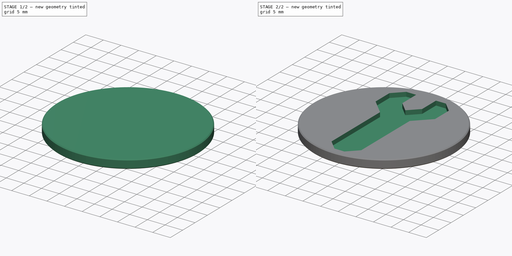
[diagram: build sequence overview — one tinted view per stage of 2, left to right]
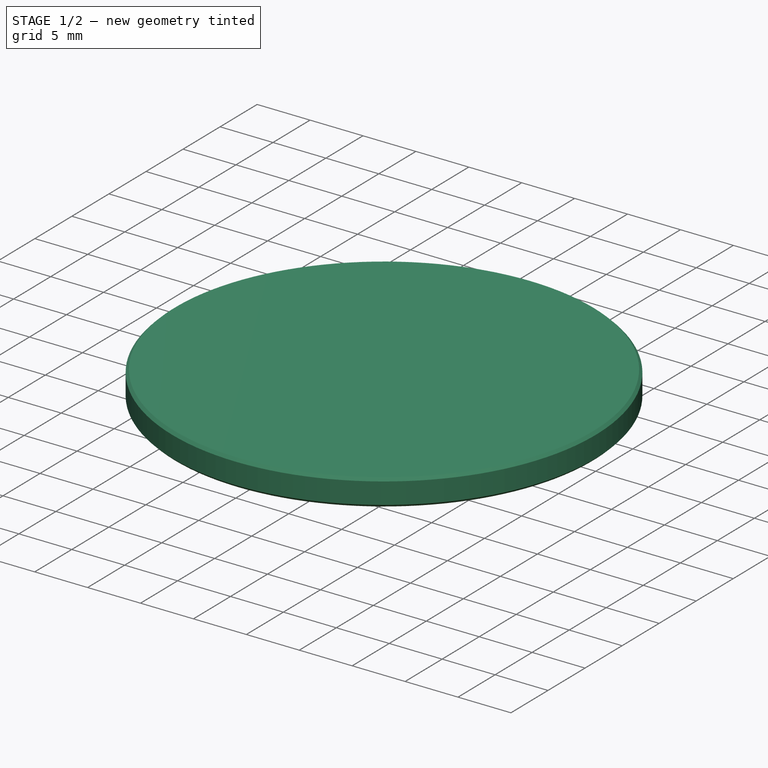
[diagram: stage 1 of 2 — iso view after this stage's code; geometry added in this stage tinted green]
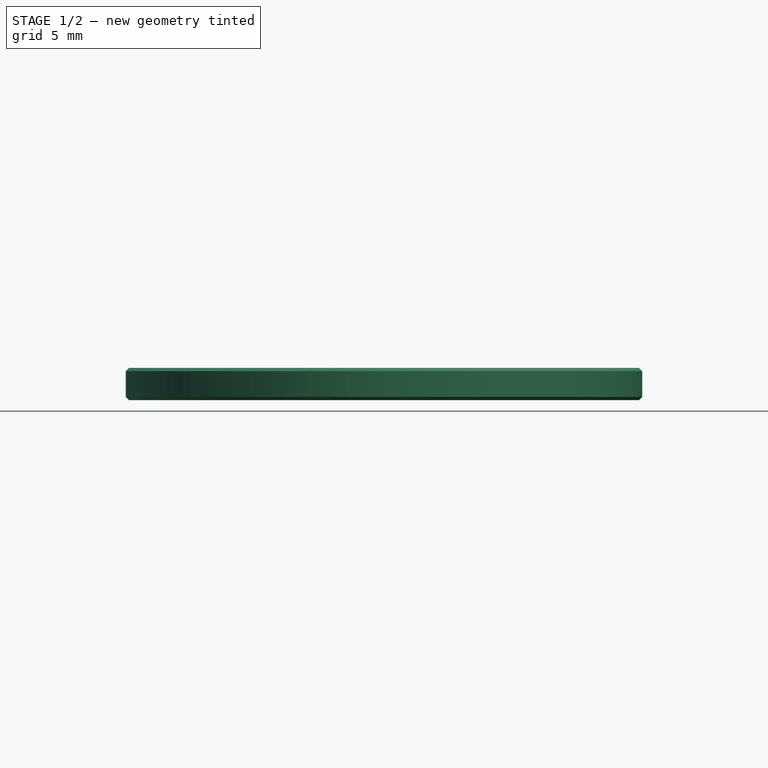
[diagram: stage 1 of 2 — front view after this stage's code; geometry added in this stage tinted green]
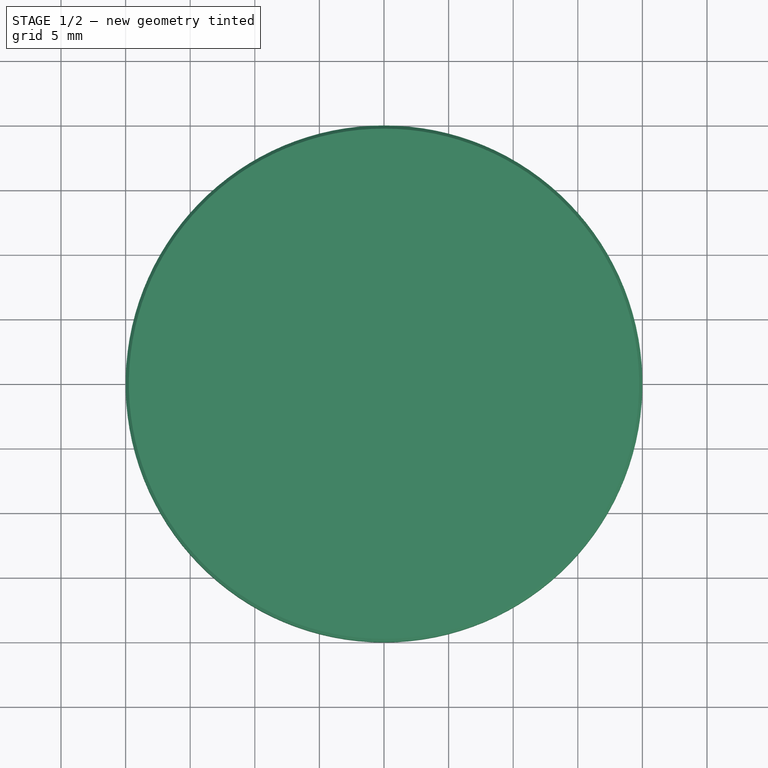
[diagram: stage 1 of 2 — top view after this stage's code; geometry added in this stage tinted green]
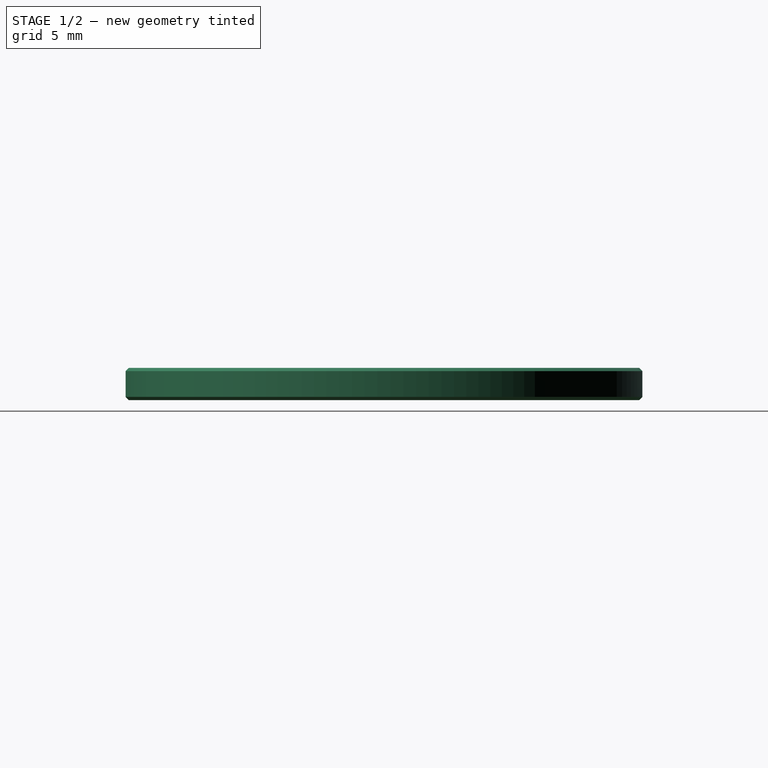
[diagram: stage 1 of 2 — right view after this stage's code; geometry added in this stage tinted green]
FCSTD DOCUMENT  (FreeCAD 0.20R29603 (Git))
Label: wrench-9226
License: All rights reserved
LicenseURL: http://en.wikipedia.org/wiki/All_rights_reserved
objects: Sketcher::SketchObject×5, PartDesign::Plane×2, App::DocumentObjectGroup×2, Part::FeaturePython×2, App::TextDocument×1, Spreadsheet::Sheet×1, PartDesign::Revolution×1, Part::Feature×1, PartDesign::Pocket×1, PartDesign::Body×1
note: 15 computed .brp shape members not serialized (recipe doc carries the construction recipe); baked Part::Feature solids carry a one-line shape summary decoded from their .brp

FEATURE [App::TextDocument] Text_document  label="Text document"
  Text = https://publicdomainvectors.org/en/free-clipart/Repair-vector-icon/9226.html
FEATURE [Spreadsheet::Sheet] Spreadsheet
  cells = A2=Vector X center; B2=vec_x; C2(dim_vec_x)==-22.45 mm; A3=Vector Y center; B3=vec_y; C3(dim_vec_y)==1.6 mm; A4=Coin radius; B4=coin_r; C4(dim_coin_r)==20 mm; A5=Coin height; B5=coin_h; C5(dim_coin_h)==2.5 mm; D5==2.5 mm; A6=Engrave depth; B6=engrave_h; C6(dim_engrave_h)==dim_coin_h / 2; A7=Chamfer width; B7=chamfer_w; C7(dim_chamfer_w)==dim_coin_h / 10; A8=Chamfer radius; B8=chamfer_r; C8(dim_chamfer_r)==dim_coin_r - dim_chamfer_w; A9=SVG Scale; B9=svg_scale; C9=7.5; A11=Edge dimple radius; B11=dimple_r; C11(dim_dimple_r)==0.5 mm; A12=Edge dimple count; B12=dimple_count; C12(dim_dimple_count)=64
FEATURE [PartDesign::Plane] DatumPlane  label="BaseXYDatumPlane"
  Length = 60
  MapMode = 5
  ResizeMode = 0
  Support = -> [XY_Plane]
  Width = 60
FEATURE [Sketcher::SketchObject] Sketch001  label="CircleSketch"
  FullyConstrained = true
  MapMode = 5
  Support = -> [DatumPlane]
  expr: Constraints[1] = Spreadsheet.dim_coin_r - Spreadsheet.dim_chamfer_w
  expr: Constraints[3] = Spreadsheet.dim_coin_r - 1 mm
  sketch-geometry (6):
    g0: Circle CenterX=0 CenterY=0 CenterZ=0 NormalX=0 NormalY=0 NormalZ=1 AngleXU=0 Radius=19.75
    g1: Circle CenterX=0 CenterY=0 CenterZ=0 NormalX=0 NormalY=0 NormalZ=1 AngleXU=0 Radius=19
    g2: LineSegment StartX=0 StartY=0 StartZ=0 EndX=0 EndY=19 EndZ=0
    g3: LineSegment StartX=0 StartY=0 StartZ=0 EndX=0 EndY=-19 EndZ=0
    g4: LineSegment StartX=0 StartY=0 StartZ=0 EndX=-19 EndY=0 EndZ=0
    g5: LineSegment StartX=0 StartY=0 StartZ=0 EndX=19 EndY=0 EndZ=0
  constraints (16):
    c: Coincident(g0,g-1)
    c: Radius(g0) = 19.75
    c: Coincident(g1,g0)
    c: Radius(g1) = 19
    c: Coincident(g2,g0)
    c: PointOnObject(g2,g1)
    c: Vertical(g2)
    c: Coincident(g3,g0)
    c: PointOnObject(g3,g1)
    c: Vertical(g3)
    c: Coincident(g4,g0)
    c: PointOnObject(g4,g1)
    c: Horizontal(g4)
    c: Coincident(g5,g0)
    c: PointOnObject(g5,g1)
    c: Horizontal(g5)
FEATURE [PartDesign::Plane] DatumPlane001  label="ProfileYZDatumPlane"
  Length = 60
  MapMode = 5
  Placement = pos=(0,0,0) rot=(0.57735,0.57735,0.57735;2.0944rad)
  ResizeMode = 0
  Support = -> [YZ_Plane]
  Width = 60
FEATURE [Sketcher::SketchObject] Sketch  label="CoinProfileSketch"
  FullyConstrained = true
  MapMode = 5
  Placement = pos=(0,0,0) rot=(0.57735,0.57735,0.57735;2.0944rad)
  Support = -> [DatumPlane001]
  expr: Constraints[10] = Spreadsheet.dim_chamfer_w
  expr: Constraints[12] = Spreadsheet.dim_coin_h
  expr: Constraints[13] = Spreadsheet.dim_coin_r
  expr: Constraints[14] = Spreadsheet.dim_coin_r
  expr: Constraints[15] = Spreadsheet.dim_coin_h
  expr: Constraints[16] = Spreadsheet.dim_chamfer_r
  sketch-geometry (11):
    g0: LineSegment StartX=0 StartY=0 StartZ=0 EndX=0 EndY=-2.5 EndZ=0
    g1: LineSegment StartX=19.75 StartY=0 StartZ=0 EndX=20 EndY=-0.25 EndZ=0
    g2: LineSegment StartX=20 StartY=-0.25 StartZ=0 EndX=20 EndY=-2.25 EndZ=0
    g3: LineSegment StartX=20.25 StartY=0 StartZ=0 EndX=20 EndY=0 EndZ=0
    g4: LineSegment StartX=20 StartY=0 StartZ=0 EndX=20 EndY=-0.25 EndZ=0
    g5: LineSegment StartX=20 StartY=-2.25 StartZ=0 EndX=20 EndY=-2.5 EndZ=0
    g6: LineSegment StartX=0 StartY=0 StartZ=0 EndX=19.75 EndY=0 EndZ=0
    g7: LineSegment StartX=19.75 StartY=0 StartZ=0 EndX=20 EndY=0 EndZ=0
    g8: LineSegment StartX=20 StartY=-2.5 StartZ=0 EndX=19.75 EndY=-2.5 EndZ=0
    g9: LineSegment StartX=19.75 StartY=-2.5 StartZ=0 EndX=0 EndY=-2.5 EndZ=0
    g10: LineSegment StartX=19.75 StartY=-2.5 StartZ=0 EndX=20 EndY=-2.25 EndZ=0
  constraints (31):
    c: Vertical(g0)
    c: Coincident(g1,g2)
    c: Vertical(g2)
    c: Horizontal(g3)
    c: Coincident(g4,g3)
    c: Coincident(g4,g1)
    c: Coincident(g5,g2)
    c: Vertical(g5)
    c: Vertical(g4)
    c: Equal(g3,g4)
    c: DistanceY(g5,g5) = 0.25
    c: Equal(g5,g4)
    c: DistanceY(g5,g3) = 2.5
    c: DistanceX(g0,g5) = 20
    c: DistanceX(g-1,g3) = 20
    c: DistanceY(g0,g-1) = 2.5
    c: DistanceX(g1) = 19.75
    c: Coincident(g6,g0)
    c: Coincident(g6,g1)
    c: Horizontal(g6)
    c: Coincident(g7,g1)
    c: Coincident(g7,g3)
    c: Horizontal(g7)
    c: Coincident(g8,g5)
    c: Horizontal(g8)
    c: Coincident(g9,g8)
    c: Coincident(g9,g0)
    c: Horizontal(g9)
    c: Coincident(g10,g9)
    c: Coincident(g10,g2)
    c: Equal(g9,g6)
FEATURE [PartDesign::Revolution] Revolution  label="CoinRevolution"
  Angle = 360
  Axis = (-1e-16,1e-16,1)
  Base = (0,0,0)
  Placement = pos=(0,0,0) rot=(0.57735,0.57735,0.57735;2.0944rad)
  Profile = -> Sketch
  ReferenceAxis = -> Sketch [V_Axis]
  Reversed = true
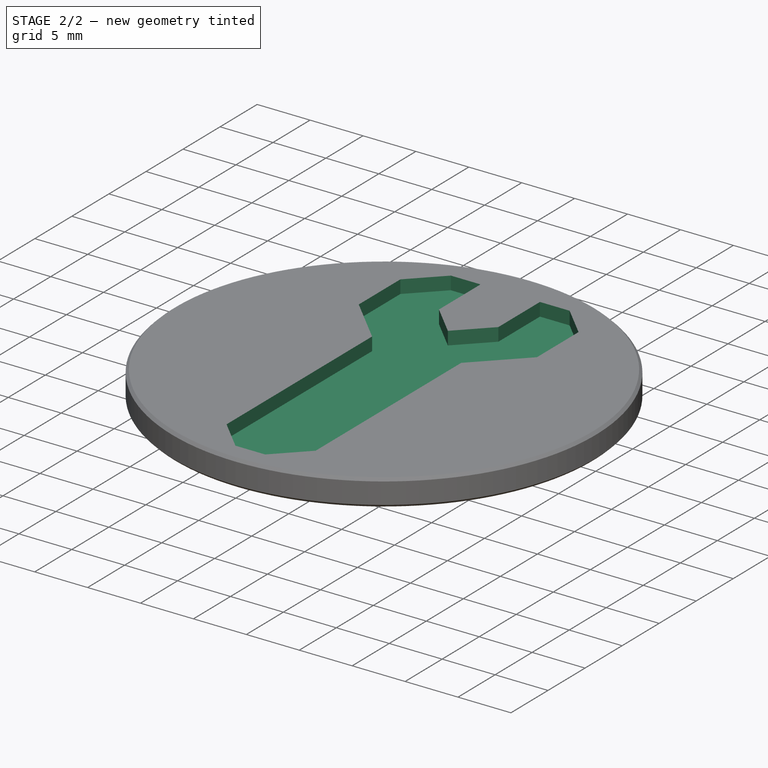
[diagram: stage 2 of 2 — iso view after this stage's code; geometry added in this stage tinted green]
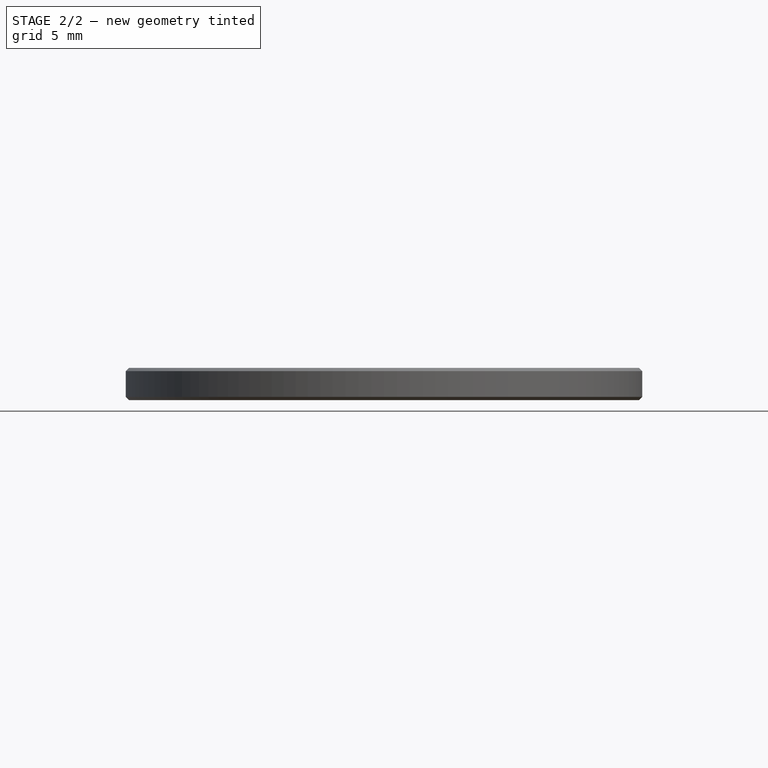
[diagram: stage 2 of 2 — front view after this stage's code; geometry added in this stage tinted green]
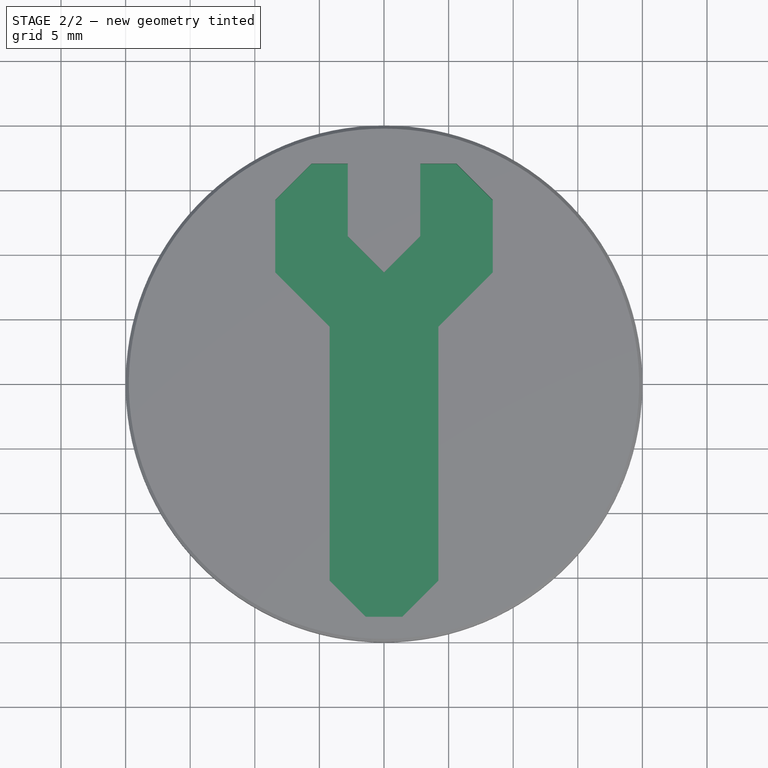
[diagram: stage 2 of 2 — top view after this stage's code; geometry added in this stage tinted green]
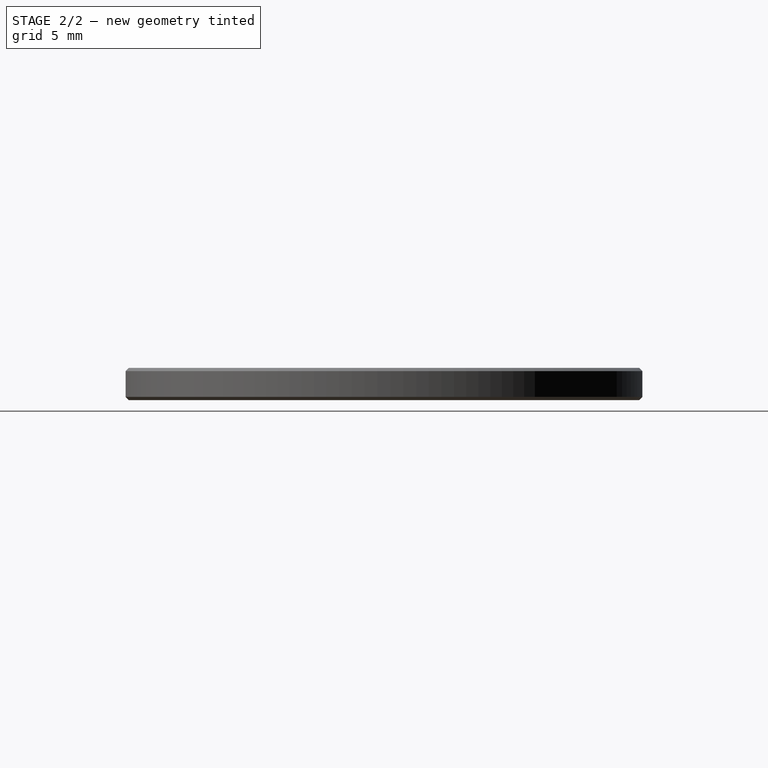
[diagram: stage 2 of 2 — right view after this stage's code; geometry added in this stage tinted green]
FEATURE [Sketcher::SketchObject] Sketch002  label="CoinEdgeProfileSketch"
  FullyConstrained = true
  MapMode = 5
  Placement = pos=(0,0,0) rot=(0.57735,0.57735,0.57735;2.0944rad)
  Support = -> [DatumPlane001]
  expr: Constraints[10] = Spreadsheet.dim_coin_r
  expr: Constraints[11] = Spreadsheet.dim_coin_h
  expr: Constraints[17] = Spreadsheet.dim_chamfer_r
  expr: Constraints[6] = Spreadsheet.dim_chamfer_w
  expr: Constraints[8] = Spreadsheet.dim_coin_h
  expr: Constraints[9] = Spreadsheet.dim_coin_r
  sketch-geometry (13):
    g0: LineSegment StartX=0 StartY=2e-16 StartZ=0 EndX=0 EndY=-2.5 EndZ=0
    g1: LineSegment StartX=20 StartY=-0.25 StartZ=0 EndX=20 EndY=-2.25 EndZ=0
    g2: LineSegment StartX=20 StartY=2e-16 StartZ=0 EndX=20 EndY=-0.25 EndZ=0
    g3: LineSegment StartX=20 StartY=-2.25 StartZ=0 EndX=20 EndY=-2.5 EndZ=0
    g4: LineSegment StartX=0 StartY=2e-16 StartZ=0 EndX=19 EndY=2e-16 EndZ=0
    g5: LineSegment StartX=19 StartY=2e-16 StartZ=0 EndX=19 EndY=-2.5 EndZ=0
    g6: LineSegment StartX=19 StartY=2e-16 StartZ=0 EndX=19.75 EndY=2e-16 EndZ=0
    g7: LineSegment StartX=19.75 StartY=2e-16 StartZ=0 EndX=20 EndY=-0.25 EndZ=0
    g8: LineSegment StartX=19.75 StartY=2e-16 StartZ=0 EndX=20 EndY=2e-16 EndZ=0
    g9: LineSegment StartX=20 StartY=-2.5 StartZ=0 EndX=19.75 EndY=-2.5 EndZ=0
    g10: LineSegment StartX=19 StartY=-2.5 StartZ=0 EndX=0 EndY=-2.5 EndZ=0
    g11: LineSegment StartX=19.75 StartY=-2.5 StartZ=0 EndX=20 EndY=-2.25 EndZ=0
    g12: LineSegment StartX=19.75 StartY=-2.5 StartZ=0 EndX=19 EndY=-2.5 EndZ=0
  constraints (36):
    c: Vertical(g0)
    c: Coincident(g0,g4)
    c: Vertical(g1)
    c: Coincident(g3,g1)
    c: Vertical(g3)
    c: Vertical(g2)
    c: DistanceY(g3,g3) = 0.25
    c: Equal(g3,g2)
    c: DistanceY(g3,g2) = 2.5
    c: DistanceX(g0,g3) = 20
    c: DistanceX(g-1,g2) = 20
    c: DistanceY(g0,g-1) = 2.5
    c: Horizontal(g4)
    c: Vertical(g5)
    c: DistanceX(g4,g2) = 1
    c: Coincident(g6,g5)
    c: Horizontal(g6)
    c: DistanceX(g0,g6) = 19.75
    c: Coincident(g7,g6)
    c: Coincident(g7,g1)
    c: Coincident(g8,g6)
    c: Coincident(g8,g2)
    c: Horizontal(g8)
    c: Coincident(g4,g5)
    c: Coincident(g2,g1)
    c: Coincident(g9,g3)
    c: Horizontal(g9)
    c: Coincident(g10,g5)
    c: Coincident(g10,g0)
    c: Horizontal(g10)
    c: Coincident(g11,g9)
    c: Coincident(g11,g1)
    c: Coincident(g12,g11)
    c: Coincident(g12,g5)
    c: Horizontal(g12)
    c: Equal(g12,g6)
FEATURE [Sketcher::SketchObject] Sketch004  label="EdgeDimpleSketch"
  FullyConstrained = true
  MapMode = 5
  Support = -> [DatumPlane]
  expr: Constraints[2] = Spreadsheet.dim_coin_r
  sketch-geometry (2):
    g0: LineSegment StartX=0 StartY=0 StartZ=0 EndX=20 EndY=0 EndZ=0
    g1: Circle CenterX=20 CenterY=0 CenterZ=0 NormalX=0 NormalY=0 NormalZ=1 AngleXU=0 Radius=0.5
  constraints (5):
    c: Horizontal(g0)
    c: Coincident(g1,g0)
    c: DistanceX(g0,g0) = 20
    c: Coincident(g0,g-1)
    c: Radius(g1) = 0.5
FEATURE [Part::Feature] path3451
  shape: bbox 3.969 x 3.969 x 2e-07 mm, 0 faces, 0 solids (baked)
FEATURE [App::DocumentObjectGroup] Group  label="OutlineGroup"
  Group = -> [path3451]
FEATURE [Part::FeaturePython] Clone  label="WrenchResize8"  # Draft clone (typed FeaturePython)
  AttacherType = Attacher::AttachEngine3D
  Fuse = false
  Objects = -> [path3451]
  Placement = pos=(-16,18,0) rot=(0,0,1;0rad)
  Scale = (8,8,8)
FEATURE [Part::FeaturePython] Clone001  label="WrenchResize7_5"  # Draft clone (typed FeaturePython)
  AttacherType = Attacher::AttachEngine3D
  Fuse = false
  Objects = -> [path3451]
  Placement = pos=(-22.45,1.6,0) rot=(0,0,1;0.785398rad)
  Scale = (7.5,7.5,7.5)
FEATURE [App::DocumentObjectGroup] Group004  label="ResizeGroup"
  Group = -> [Clone,Clone001]
FEATURE [Sketcher::SketchObject] Sketch005  label="VectorSketch"
  FullyConstrained = false
  sketch-geometry (19):
    g0: BSplineCurve PolesCount=2 KnotsCount=2 Degree=1 IsPeriodic=0
    g1: BSplineCurve PolesCount=2 KnotsCount=2 Degree=1 IsPeriodic=0
    g2: BSplineCurve PolesCount=2 KnotsCount=2 Degree=1 IsPeriodic=0
    g3: BSplineCurve PolesCount=2 KnotsCount=2 Degree=1 IsPeriodic=0
    g4: BSplineCurve PolesCount=2 KnotsCount=2 Degree=1 IsPeriodic=0
    g5: BSplineCurve PolesCount=2 KnotsCount=2 Degree=1 IsPeriodic=0
    g6: BSplineCurve PolesCount=2 KnotsCount=2 Degree=1 IsPeriodic=0
    g7: BSplineCurve PolesCount=2 KnotsCount=2 Degree=1 IsPeriodic=0
    g8: BSplineCurve PolesCount=2 KnotsCount=2 Degree=1 IsPeriodic=0
    g9: BSplineCurve PolesCount=2 KnotsCount=2 Degree=1 IsPeriodic=0
    g10: BSplineCurve PolesCount=2 KnotsCount=2 Degree=1 IsPeriodic=0
    g11: BSplineCurve PolesCount=2 KnotsCount=2 Degree=1 IsPeriodic=0
    g12: BSplineCurve PolesCount=2 KnotsCount=2 Degree=1 IsPeriodic=0
    g13: BSplineCurve PolesCount=2 KnotsCount=2 Degree=1 IsPeriodic=0
    g14: BSplineCurve PolesCount=2 KnotsCount=2 Degree=1 IsPeriodic=0
    g15: BSplineCurve PolesCount=2 KnotsCount=2 Degree=1 IsPeriodic=0
    g16: BSplineCurve PolesCount=2 KnotsCount=2 Degree=1 IsPeriodic=0
    g17: BSplineCurve PolesCount=2 KnotsCount=2 Degree=1 IsPeriodic=0
    g18: BSplineCurve PolesCount=2 KnotsCount=2 Degree=1 IsPeriodic=0
  constraints (19):
    c: Coincident(g0,g1)
    c: Coincident(g1,g2)
    c: Coincident(g2,g3)
    c: Coincident(g3,g4)
    c: Coincident(g4,g5)
    c: Coincident(g5,g6)
    c: Coincident(g6,g7)
    c: Coincident(g7,g8)
    c: Coincident(g8,g9)
    c: Coincident(g9,g10)
    c: Coincident(g10,g11)
    c: Coincident(g11,g12)
    c: Coincident(g12,g13)
    c: Coincident(g13,g14)
    c: Coincident(g14,g15)
    c: Coincident(g15,g16)
    c: Coincident(g16,g17)
    c: Coincident(g17,g18)
    c: Coincident(g18,g0)
FEATURE [PartDesign::Pocket] Pocket  label="VectorPocket"
  BaseFeature = -> Revolution
  Direction = (0,0,-1)
  Length = 1.25
  Length2 = 5
  Placement = pos=(0,0,0) rot=(0.57735,0.57735,0.57735;2.0944rad)
  Profile = -> Sketch005
  ReferenceAxis = -> Sketch005 [N_Axis]
  Type = 0
  expr: Length = Spreadsheet.dim_engrave_h
FEATURE [PartDesign::Body] Body
  Group = -> [DatumPlane,Sketch001,DatumPlane001,Sketch,Revolution,Sketch002,Sketch004,Sketch005,Pocket]
  Origin = -> Origin
  Tip = -> Pocket
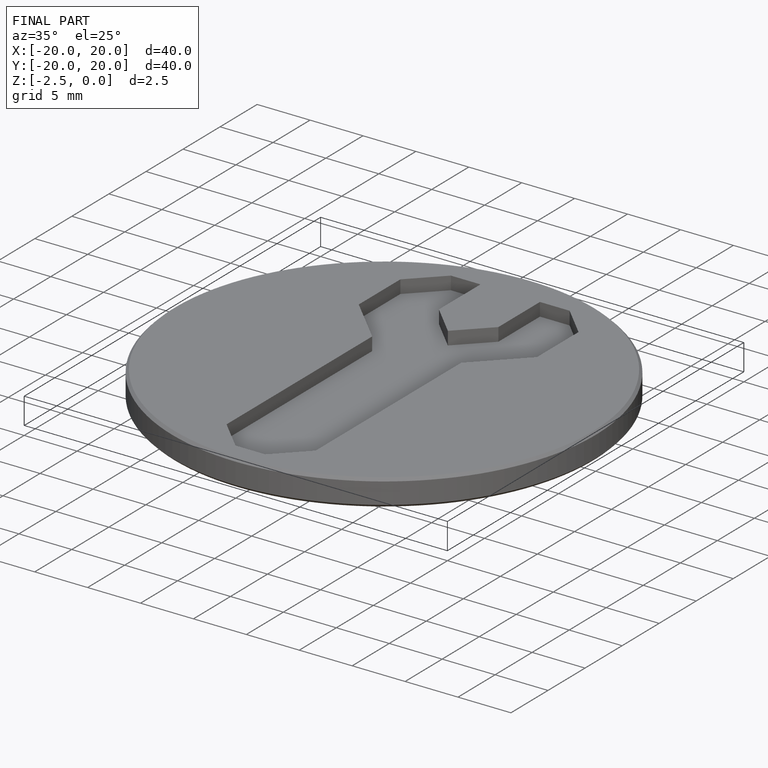
[diagram: finished part — iso view with bounding-box wireframe]
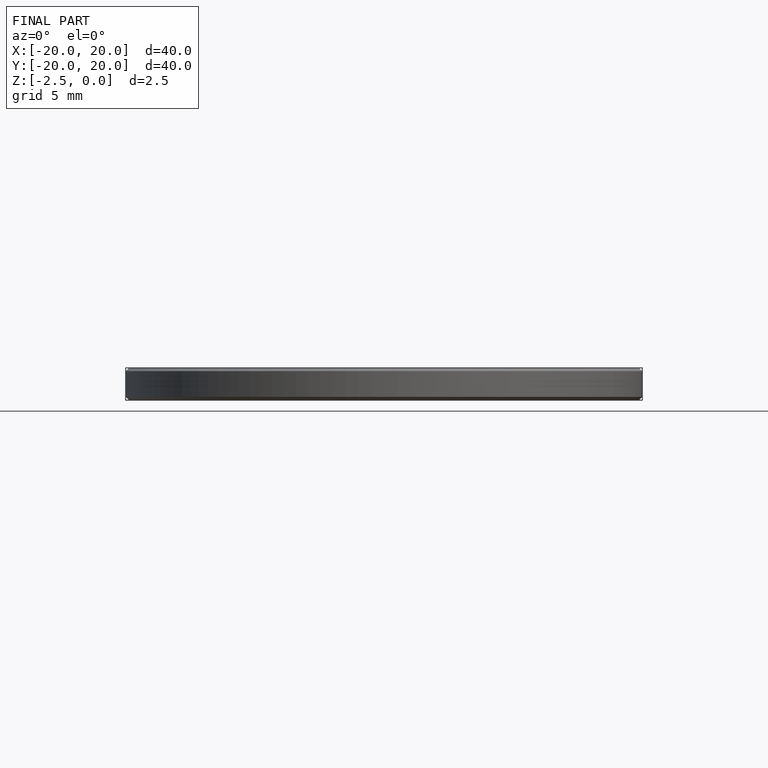
[diagram: finished part — front view with bounding-box wireframe]
